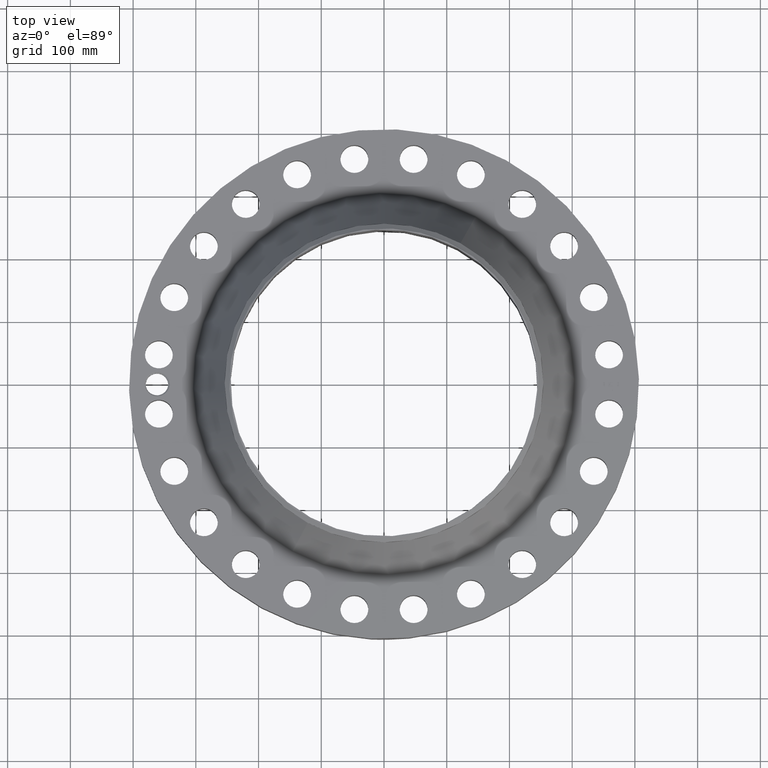
[diagram: clean part render]
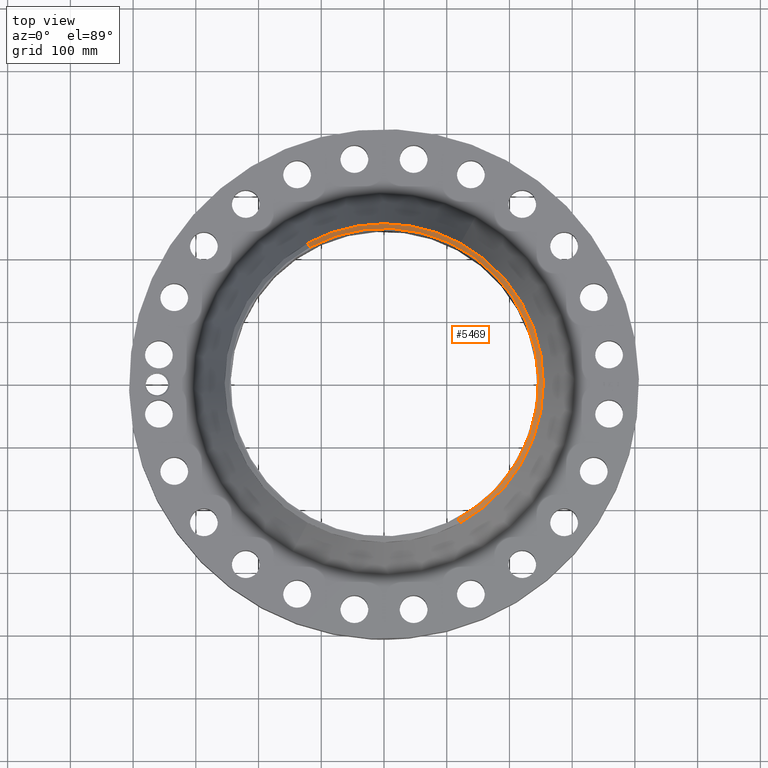
[diagram: same view with one face highlighted and labeled with its STEP entity id]
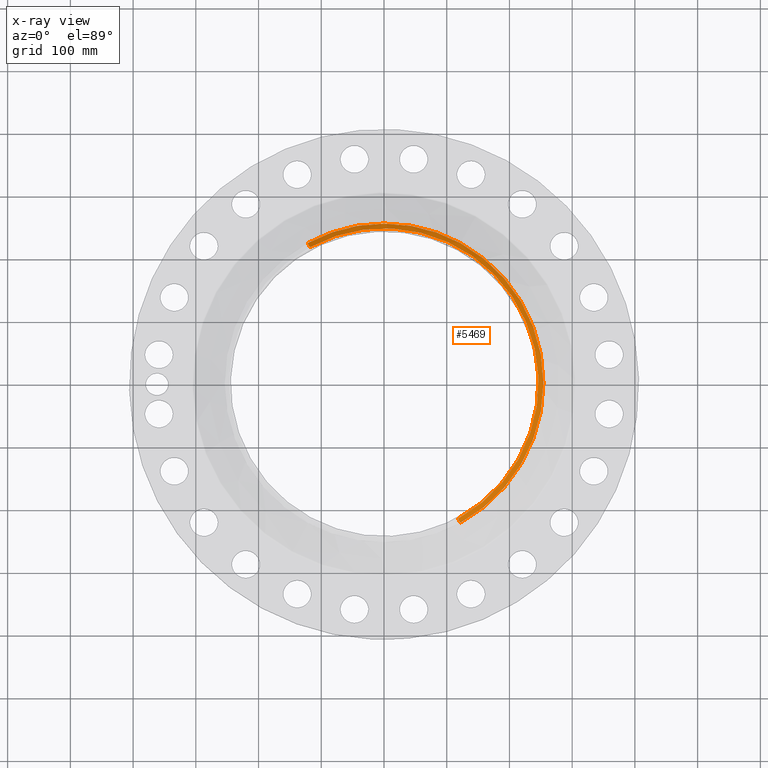
[diagram: x-ray of the same camera — body ghosted, the highlighted face saturated]
A machine part, top view. The second image highlights one B-rep face of the part: STEP entity #5469.
The next image is the same camera in x-ray: the body ghosted, the highlighted face saturated — about 0% of this face is hidden behind the body in this view.
In plain terms, the highlighted conical surface has half-angle 52.5 deg.
Its self-contained STEP definition (entity closure, byte-faithful):
#4272=AXIS2_PLACEMENT_3D('Circle Axis2P3D',#4270,#4271,$) ;
#4299=AXIS2_PLACEMENT_3D('Circle Axis2P3D',#4297,#4298,$) ;
#5085=AXIS2_PLACEMENT_3D('Circle Axis2P3D',#5083,#5084,$) ;
#5450=AXIS2_PLACEMENT_3D('Cone Axis2P3D',#5447,#5448,#5449) ;
#4267=CARTESIAN_POINT('Vertex',(4.79425538606,8.77582561894,7.52267182741)) ;
#4270=CARTESIAN_POINT('Axis2P3D Location',(0.,0.,7.52267182741)) ;
#4274=CARTESIAN_POINT('Vertex',(4.79425538606,-8.77582561894,7.52267182741)) ;
#4294=CARTESIAN_POINT('Vertex',(-4.79425538606,8.77582561894,7.52267182741)) ;
#4297=CARTESIAN_POINT('Axis2P3D Location',(0.,0.,7.52267182741)) ;
#5083=CARTESIAN_POINT('Axis2P3D Location',(0.,0.,7.75000000003)) ;
#5087=CARTESIAN_POINT('Vertex',(4.65222085149,-8.51583314735,7.75000000003)) ;
#5089=CARTESIAN_POINT('Vertex',(-4.65222085149,8.51583314735,7.75000000003)) ;
#5447=CARTESIAN_POINT('Axis2P3D Location',(0.,0.,7.75000000003)) ;
#5452=CARTESIAN_POINT('Line Origine',(-4.72323811878,8.64582938315,7.63633591372)) ;
#5457=CARTESIAN_POINT('Line Origine',(4.72323811878,-8.64582938315,7.63633591372)) ;
#4271=DIRECTION('Axis2P3D Direction',(0.,0.,-0.0393700787402)) ;
#4298=DIRECTION('Axis2P3D Direction',(0.,0.,-0.0393700787402)) ;
#5084=DIRECTION('Axis2P3D Direction',(0.,0.,-0.0393700787402)) ;
#5448=DIRECTION('Axis2P3D Direction',(-0.,-0.,-0.0393700787402)) ;
#5449=DIRECTION('Axis2P3D XDirection',(0.0188750212049,-0.0345504945626,0.)) ;
#5453=DIRECTION('Vector Direction',(-0.014974561121,0.02741075027,-0.023966985394)) ;
#5458=DIRECTION('Vector Direction',(0.014974561121,-0.02741075027,-0.023966985394)) ;
#5454=VECTOR('Line Direction',#5453,0.0393700787402) ;
#5459=VECTOR('Line Direction',#5458,0.0393700787402) ;
#5463=ORIENTED_EDGE('',*,*,#5456,.F.) ;
#5464=ORIENTED_EDGE('',*,*,#5091,.F.) ;
#5465=ORIENTED_EDGE('',*,*,#5461,.T.) ;
#5466=ORIENTED_EDGE('',*,*,#4276,.T.) ;
#5467=ORIENTED_EDGE('',*,*,#4301,.F.) ;
#5469=ADVANCED_FACE('PartBody',(#5468),#5451,.T.) ;
#4273=CIRCLE('generated circle',#4272,10.) ;
#4300=CIRCLE('generated circle',#4299,10.) ;
#5086=CIRCLE('generated circle',#5085,9.70374015752) ;
#5451=CONICAL_SURFACE('Cone',#5450,9.70374015752,0.916297857297) ;
#4276=EDGE_CURVE('',#4275,#4268,#4273,.F.) ;
#4301=EDGE_CURVE('',#4295,#4268,#4300,.T.) ;
#5091=EDGE_CURVE('',#5088,#5090,#5086,.F.) ;
#5456=EDGE_CURVE('',#5090,#4295,#5455,.T.) ;
#5461=EDGE_CURVE('',#5088,#4275,#5460,.T.) ;
#5462=EDGE_LOOP('',(#5463,#5464,#5465,#5466,#5467)) ;
#5468=FACE_OUTER_BOUND('',#5462,.T.) ;
#5455=LINE('Line',#5452,#5454) ;
#5460=LINE('Line',#5457,#5459) ;
#4268=VERTEX_POINT('',#4267) ;
#4275=VERTEX_POINT('',#4274) ;
#4295=VERTEX_POINT('',#4294) ;
#5088=VERTEX_POINT('',#5087) ;
#5090=VERTEX_POINT('',#5089) ;